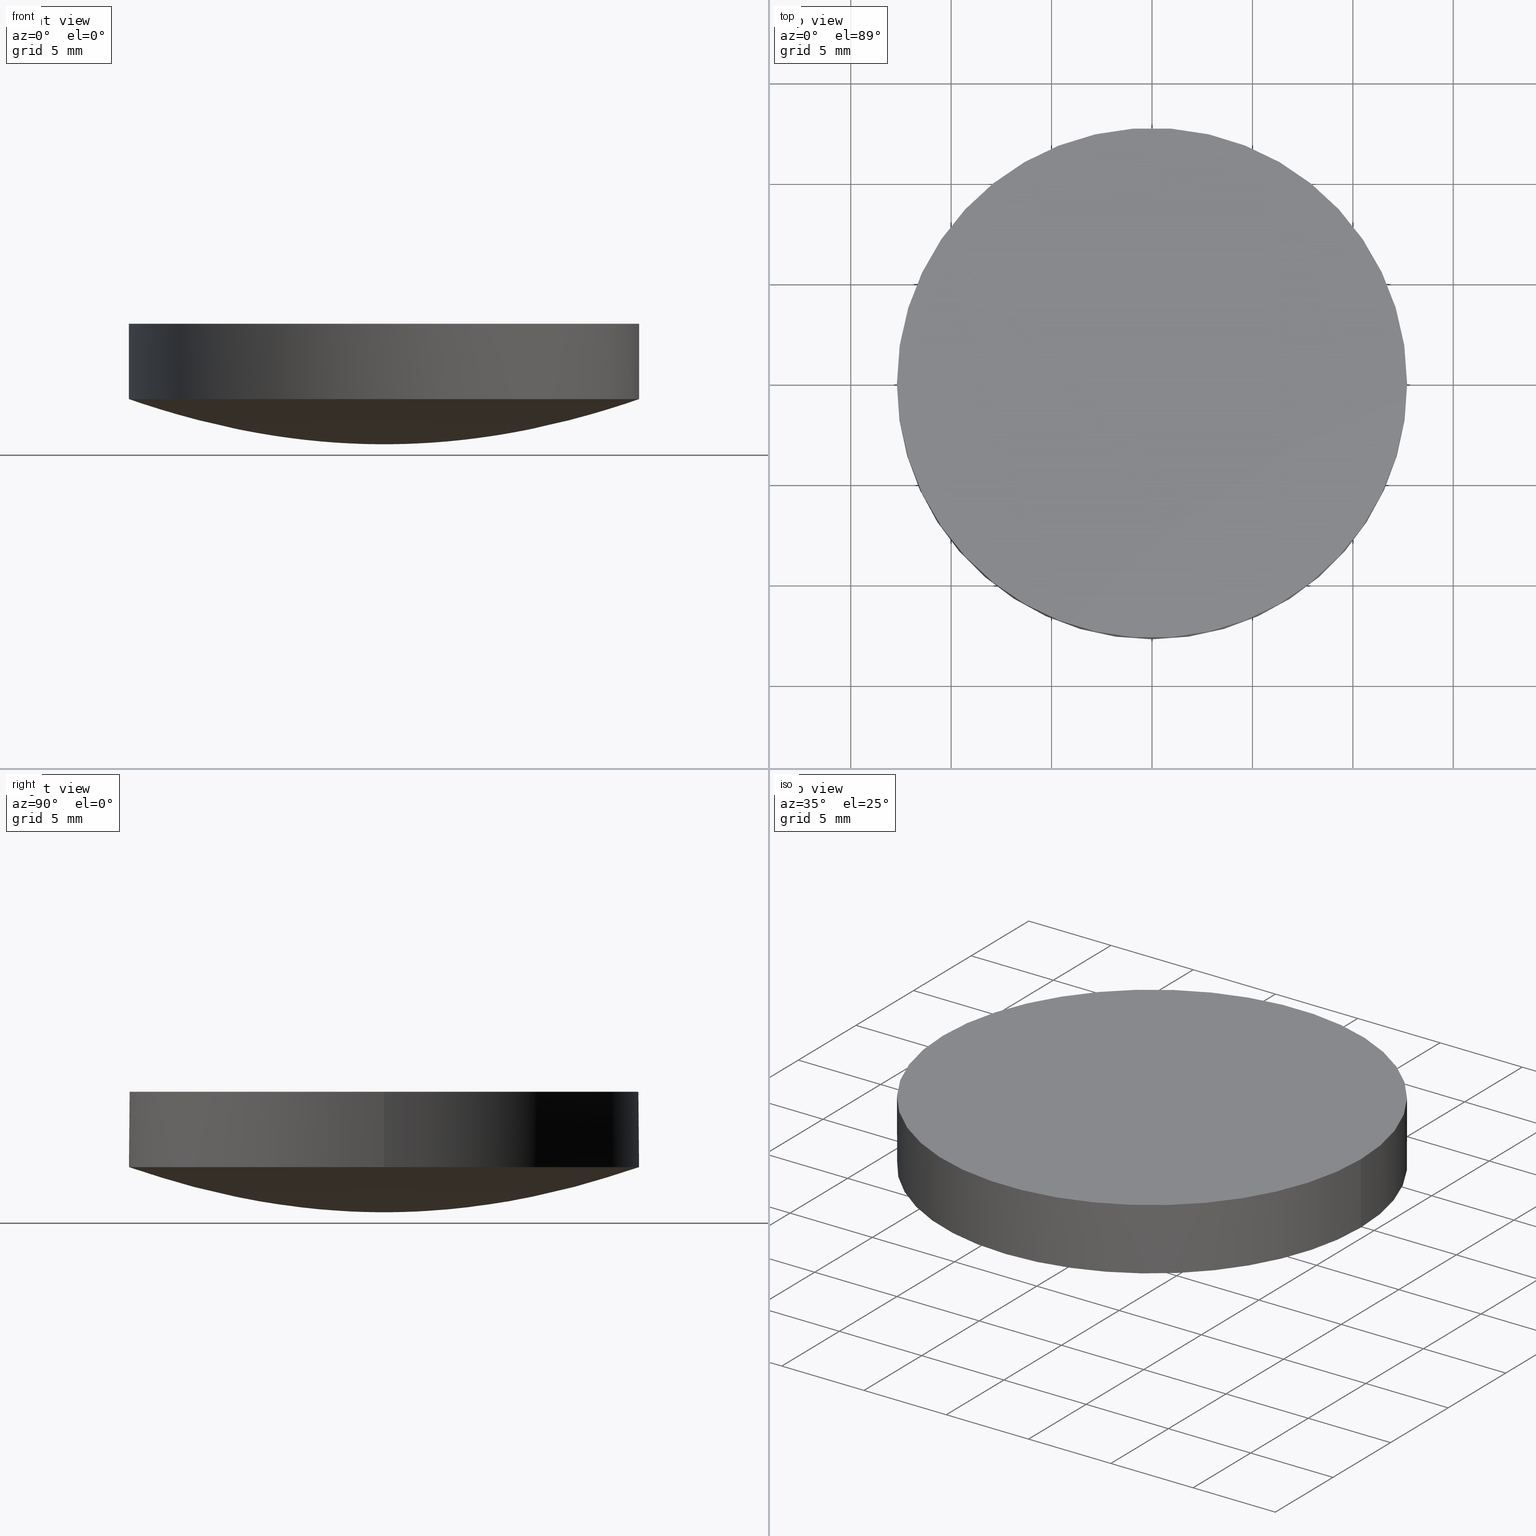
[diagram: canonical four-view strip — front | top / right | iso, engineering-drawing reading convention]
A machine part, canonical four-view strip (front | top / right | iso — engineering-drawing reading convention). The complete STEP part file that produces these views, byte-faithful:
ISO-10303-21;
HEADER;
FILE_DESCRIPTION (( 'STEP AP203' ),
    '1' );
FILE_NAME ('140010.STEP',
    '2021-03-15T05:16:45',
    ( '' ),
    ( '' ),
    'SwSTEP 2.0',
    'SolidWorks 2020',
    '' );
FILE_SCHEMA (( 'CONFIG_CONTROL_DESIGN' ));
ENDSEC;

DATA;
#1 = CARTESIAN_POINT ( 'NONE',  ( 4.411899105315639780, -4.411899105315650438, 0.2736846880030949780 ) ) ;
#2 = CARTESIAN_POINT ( 'NONE',  ( 0.000000000000000000, 6.000059958291039663, 0.5076367197546349797 ) ) ;
#3 = CARTESIAN_POINT ( 'NONE',  ( -9.292796699924739176E-16, -7.588144358352749919, 0.8112916420088790437 ) ) ;
#4 = CARTESIAN_POINT ( 'NONE',  ( -0.9709507383550212145, 0.9709507383550212145, 0.007996846882740939536 ) ) ;
#5 = CARTESIAN_POINT ( 'NONE',  ( -2.823676809465809789, 1.729003383269460226E-16, 0.1104526157183659957 ) ) ;
#6 = ORIENTED_EDGE ( 'NONE', *, *, #297, .F. ) ;
#7 = ADVANCED_FACE ( 'NONE', ( #386 ), #39, .T. ) ;
#8 = CARTESIAN_POINT ( 'NONE',  ( 0.000000000000000000, 4.411899105315640668, 0.2736846880030949780 ) ) ;
#9 = CARTESIAN_POINT ( 'NONE',  ( -9.176139476843300002, -9.176139476843300002, 1.183323889670500062 ) ) ;
#10 = CARTESIAN_POINT ( 'NONE',  ( 1.853112057911709964, -3.404111625274400151E-16, 0.04462971761608650750 ) ) ;
#11 = CARTESIAN_POINT ( 'NONE',  ( 0.000000000000000000, 11.12088207166359943, 1.723977609967809910 ) ) ;
#12 = PERSON_AND_ORGANIZATION ( #41, #361 ) ;
#13 = CARTESIAN_POINT ( 'NONE',  ( 4.411899105315640668, -8.104527176228809510E-16, 0.2736846880030949780 ) ) ;
#14 = ADVANCED_FACE ( 'NONE', ( #258 ), #300, .T. ) ;
#15 = CARTESIAN_POINT ( 'NONE',  ( 0.000000000000000000, 8.293787562700359217, 0.9682949744517169721 ) ) ;
#16 = CARTESIAN_POINT ( 'NONE',  ( 12.69999999999999929, 12.69999999999999929, 2.247269223239399594 ) ) ;
#17 = CARTESIAN_POINT ( 'NONE',  ( 0.000000000000000000, 0.000000000000000000, 0.000000000000000000 ) ) ;
#18 = LINE ( 'NONE', #400, #486 ) ;
#19 = DIRECTION ( 'NONE',  ( -1.000000000000000000, 0.000000000000000000, -3.414809992080328407E-17 ) ) ;
#20 = CARTESIAN_POINT ( 'NONE',  ( 9.881753641688270307, 9.881753641688270307, 1.370214453410330213 ) ) ;
#21 = PERSON_AND_ORGANIZATION ( #41, #361 ) ;
#22 = CIRCLE ( 'NONE', #536, 12.69999999999999929 ) ;
#23 = CARTESIAN_POINT ( 'NONE',  ( -3.458006766538920453E-16, -2.823676809465809789, 0.1104526157183659957 ) ) ;
#24 = FACE_OUTER_BOUND ( 'NONE', #255, .T. ) ;
#25 = COORDINATED_UNIVERSAL_TIME_OFFSET ( 8, 0, .AHEAD. ) ;
#26 = CARTESIAN_POINT ( 'NONE',  ( 0.000000000000000000, 0.2646510451225539962, 0.000000000000000000 ) ) ;
#27 = CARTESIAN_POINT ( 'NONE',  ( -5.403018117485879909E-16, -4.411899105315640668, 0.2736846880030949780 ) ) ;
#28 = CARTESIAN_POINT ( 'NONE',  ( -3.241040553003370126E-17, -0.2646510451225539962, 0.000000000000000000 ) ) ;
#29 = CARTESIAN_POINT ( 'NONE',  ( 0.000000000000000000, 8.293787562700359217, 0.9682949744517169721 ) ) ;
#30 = PERSON_AND_ORGANIZATION ( #41, #361 ) ;
#31 = CARTESIAN_POINT ( 'NONE',  ( -0.9709507383550211035, 5.945358569281179488E-17, 0.007996846882740939536 ) ) ;
#32 = CARTESIAN_POINT ( 'NONE',  ( -7.588144358352749919, 4.646398349962369588E-16, 0.8112916420088790437 ) ) ;
#33 = CARTESIAN_POINT ( 'NONE',  ( -1.210165796725620084E-15, -9.881753641688270307, 1.370214453410329991 ) ) ;
#34 = COORDINATED_UNIVERSAL_TIME_OFFSET ( 8, 0, .AHEAD. ) ;
#35 = CARTESIAN_POINT ( 'NONE',  ( 5.117593248833900432, 5.117593248833889774, 0.3689892521256640245 ) ) ;
#36 = CARTESIAN_POINT ( 'NONE',  ( 0.000000000000000000, 9.176139476843300002, 1.183323889670500062 ) ) ;
#37 = CIRCLE ( 'NONE', #285, 12.70000000000000284 ) ;
#38 = CARTESIAN_POINT ( 'NONE',  ( 2.823676809465809345, -2.823676809465809345, 0.1104526157183659957 ) ) ;
#39 = CYLINDRICAL_SURFACE ( 'NONE', #409, 12.69999999999999929 ) ;
#40 = CARTESIAN_POINT ( 'NONE',  ( -5.117593248833890662, 3.133622095761270144E-16, 0.3689892521256640801 ) ) ;
#41 = PERSON ( 'δָ��', 'δָ��', 'δָ��', ('δָ��'), ('δָ��'), ('δָ��') ) ;
#42 = CARTESIAN_POINT ( 'NONE',  ( 0.000000000000000000, 1.853112057911709964, 0.04462971761608650750 ) ) ;
#43 = CARTESIAN_POINT ( 'NONE',  ( 6.000059958291040552, 6.000059958291040552, 0.5076367197546349797 ) ) ;
#44 = CARTESIAN_POINT ( 'NONE',  ( 11.12088207166360121, 11.12088207166360121, 1.723977609967809910 ) ) ;
#45 = CARTESIAN_POINT ( 'NONE',  ( -6.705730617368448776, -6.705730617368448776, 0.6340659673807349517 ) ) ;
#46 = CARTESIAN_POINT ( 'NONE',  ( 0.000000000000000000, 11.12088207166359943, 1.723977609967809910 ) ) ;
#47 = CARTESIAN_POINT ( 'NONE',  ( 0.000000000000000000, 0.000000000000000000, 0.000000000000000000 ) ) ;
#48 = EDGE_CURVE ( 'NONE', #84, #178, #143, .T. ) ;
#49 = CARTESIAN_POINT ( 'NONE',  ( -5.117593248833900432, -5.117593248833889774, 0.3689892521256640245 ) ) ;
#50 = ORIENTED_EDGE ( 'NONE', *, *, #48, .T. ) ;
#51 = CARTESIAN_POINT ( 'NONE',  ( 0.000000000000000000, 3.529391070972859978, 0.1742189932542360098 ) ) ;
#52 = CARTESIAN_POINT ( 'NONE',  ( 11.12088207166359943, -2.042872894913700070E-15, 1.723977609967809910 ) ) ;
#53 = DATE_TIME_ROLE ( 'creation_date' ) ;
#54 = CARTESIAN_POINT ( 'NONE',  ( 4.411899105315639780, -4.411899105315650438, 0.2736846880030949780 ) ) ;
#55 = CARTESIAN_POINT ( 'NONE',  ( 12.00062017183519991, 12.00062017183519991, 2.005515679943810081 ) ) ;
#56 = CARTESIAN_POINT ( 'NONE',  ( 12.70000000000000462, -8.881784197001248379E-16, 2.247269223239400926 ) ) ;
#57 = CARTESIAN_POINT ( 'NONE',  ( 1.734723475976807094E-15, -1.345898117247522881E-15, 2.247269223239400482 ) ) ;
#58 = CARTESIAN_POINT ( 'NONE',  ( -1.210165796725620084E-15, -9.881753641688270307, 1.370214453410329991 ) ) ;
#59 = CALENDAR_DATE ( 2021, 15, 3 ) ;
#60 = CARTESIAN_POINT ( 'NONE',  ( -1.469652108122110051E-15, -12.00062017183519991, 2.005515679943810081 ) ) ;
#61 = CARTESIAN_POINT ( 'NONE',  ( -12.69999999999999929, 7.776507174585690191E-16, 2.247269223239400038 ) ) ;
#62 = COORDINATED_UNIVERSAL_TIME_OFFSET ( 8, 0, .AHEAD. ) ;
#63 = CARTESIAN_POINT ( 'NONE',  ( -12.00062017183519991, 12.00062017183519991, 2.005515679943810081 ) ) ;
#64 = CARTESIAN_POINT ( 'NONE',  ( 0.000000000000000000, 0.000000000000000000, 0.000000000000000000 ) ) ;
#65 = CARTESIAN_POINT ( 'NONE',  ( -11.12088207166360121, 11.12088207166360121, 1.723977609967809910 ) ) ;
#66 = CARTESIAN_POINT ( 'NONE',  ( -1.189071713856240088E-16, -0.9709507383550211035, 0.007996846882740939536 ) ) ;
#67 = CARTESIAN_POINT ( 'NONE',  ( -6.000059958291040552, 6.000059958291040552, 0.5076367197546349797 ) ) ;
#68 = CARTESIAN_POINT ( 'NONE',  ( -1.853112057911709742, -1.853112057911709742, 0.04462971761608650056 ) ) ;
#69 = EDGE_LOOP ( 'NONE', ( #161, #507, #226, #120 ) ) ;
#70 = CARTESIAN_POINT ( 'NONE',  ( 5.117593248833889774, -5.117593248833900432, 0.3689892521256640245 ) ) ;
#71 = ORIENTED_EDGE ( 'NONE', *, *, #199, .F. ) ;
#72 = LOCAL_TIME ( 13, 16, 45.00000000000000000, #34 ) ;
#73 = CARTESIAN_POINT ( 'NONE',  ( 1.853112057911709742, -1.853112057911709742, 0.04462971761608650056 ) ) ;
#74 = DIRECTION ( 'NONE',  ( 6.993530863780509846E-17, 4.890947394265059749E-33, 1.000000000000000000 ) ) ;
#75 = CARTESIAN_POINT ( 'NONE',  ( -3.241040553003370126E-17, -0.2646510451225539962, 0.000000000000000000 ) ) ;
#76 = CARTESIAN_POINT ( 'NONE',  ( 0.000000000000000000, 3.529391070972859978, 0.1742189932542360098 ) ) ;
#77 = CARTESIAN_POINT ( 'NONE',  ( 6.000059958291040552, -6.000059958291040552, 0.5076367197546349797 ) ) ;
#78 = CARTESIAN_POINT ( 'NONE',  ( -0.9709507383550212145, -0.9709507383550212145, 0.007996846882740939536 ) ) ;
#79 = CARTESIAN_POINT ( 'NONE',  ( 3.529391070972860422, -3.529391070972860422, 0.1742189932542360098 ) ) ;
#80 = CARTESIAN_POINT ( 'NONE',  ( 0.000000000000000000, 9.881753641688270307, 1.370214453410329991 ) ) ;
#81 = CARTESIAN_POINT ( 'NONE',  ( 0.000000000000000000, 9.881753641688270307, 1.370214453410329991 ) ) ;
#82 = CC_DESIGN_APPROVAL ( #461, ( #215 ) ) ;
#83 = CARTESIAN_POINT ( 'NONE',  ( 5.117593248833900432, 5.117593248833889774, 0.3689892521256640245 ) ) ;
#84 = VERTEX_POINT ( 'NONE', #245 ) ;
#85 = CARTESIAN_POINT ( 'NONE',  ( 9.881753641688270307, -9.881753641688270307, 1.370214453410330213 ) ) ;
#86 = CARTESIAN_POINT ( 'NONE',  ( 0.000000000000000000, 6.705730617368449664, 0.6340659673807349517 ) ) ;
#87 = CARTESIAN_POINT ( 'NONE',  ( -0.2646510451225540517, -0.2646510451225540517, 0.000000000000000000 ) ) ;
#88 = CARTESIAN_POINT ( 'NONE',  ( 1.150626804807467557E-15, -8.881784197001250351E-16, 5.999999999999999112 ) ) ;
#89 = CARTESIAN_POINT ( 'NONE',  ( -1.015696039146910080E-15, -8.293787562700359217, 0.9682949744517169721 ) ) ;
#90 = CARTESIAN_POINT ( 'NONE',  ( 6.000059958291040552, -6.000059958291040552, 0.5076367197546349797 ) ) ;
#91 = CARTESIAN_POINT ( 'NONE',  ( 0.000000000000000000, 12.00062017183519991, 2.005515679943810081 ) ) ;
#92 = CARTESIAN_POINT ( 'NONE',  ( 0.000000000000000000, 0.000000000000000000, 0.000000000000000000 ) ) ;
#93 = CARTESIAN_POINT ( 'NONE',  ( -3.529391070972859978, 2.161128739003080043E-16, 0.1742189932542360098 ) ) ;
#94 = CARTESIAN_POINT ( 'NONE',  ( -9.881753641688270307, -9.881753641688270307, 1.370214453410330213 ) ) ;
#95 = AXIS2_PLACEMENT_3D ( 'NONE', #88, #401, #142 ) ;
#96 = CARTESIAN_POINT ( 'NONE',  ( 11.12088207166360121, -11.12088207166360121, 1.723977609967809910 ) ) ;
#97 = DESIGN_CONTEXT ( 'detailed design', #246, 'design' ) ;
#98 = EDGE_CURVE ( 'NONE', #230, #178, #170, .T. ) ;
#99 = CARTESIAN_POINT ( 'NONE',  ( -1.555301434917141588E-15, -12.70000000000000462, 2.247269223239400926 ) ) ;
#100 = CARTESIAN_POINT ( 'NONE',  ( 0.000000000000000000, 0.000000000000000000, 0.000000000000000000 ) ) ;
#101 =( NAMED_UNIT ( * ) PLANE_ANGLE_UNIT ( ) SI_UNIT ( $, .RADIAN. ) );
#102 = CARTESIAN_POINT ( 'NONE',  ( -7.588144358352750807, -7.588144358352750807, 0.8112916420088790437 ) ) ;
#103 = CARTESIAN_POINT ( 'NONE',  ( -12.70000000000000107, 6.671230152170136933E-16, 2.247269223239400038 ) ) ;
#104 = CARTESIAN_POINT ( 'NONE',  ( 0.000000000000000000, 26.11199999999999832, 6.000000000000000000 ) ) ;
#105 = CARTESIAN_POINT ( 'NONE',  ( 9.176139476843291121, -9.176139476843300002, 1.183323889670500062 ) ) ;
#106 = APPROVAL_PERSON_ORGANIZATION ( #12, #461, #190 ) ;
#107 = CARTESIAN_POINT ( 'NONE',  ( 12.69999999999999929, -2.332952152375710015E-15, 2.247269223239400038 ) ) ;
#108 = SECURITY_CLASSIFICATION_LEVEL ( 'unclassified' ) ;
#109 = CC_DESIGN_DATE_AND_TIME_ASSIGNMENT ( #194, #53, ( #215 ) ) ;
#110 = CARTESIAN_POINT ( 'NONE',  ( 8.293787562700359217, -8.293787562700371652, 0.9682949744517168611 ) ) ;
#111 = CARTESIAN_POINT ( 'NONE',  ( 0.000000000000000000, 12.00062017183519991, 2.005515679943810081 ) ) ;
#112 = CARTESIAN_POINT ( 'NONE',  ( -8.212151536504669993E-16, -6.705730617368449664, 0.6340659673807349517 ) ) ;
#113 = COORDINATED_UNIVERSAL_TIME_OFFSET ( 8, 0, .AHEAD. ) ;
#114 = CARTESIAN_POINT ( 'NONE',  ( 0.000000000000000000, 6.705730617368449664, 0.6340659673807349517 ) ) ;
#115 = LOCAL_TIME ( 13, 16, 45.00000000000000000, #411 ) ;
#116 = APPROVAL_ROLE ( '' ) ;
#117 = CARTESIAN_POINT ( 'NONE',  ( -1.189071713856240088E-16, -0.9709507383550211035, 0.007996846882740939536 ) ) ;
#118 = VERTEX_POINT ( 'NONE', #103 ) ;
#119 = CARTESIAN_POINT ( 'NONE',  ( 0.000000000000000000, 3.529391070972859978, 0.1742189932542360098 ) ) ;
#120 = ORIENTED_EDGE ( 'NONE', *, *, #177, .T. ) ;
#121 = CARTESIAN_POINT ( 'NONE',  ( -4.411899105315639780, 4.411899105315639780, 0.2736846880030949780 ) ) ;
#122 = CARTESIAN_POINT ( 'NONE',  ( -8.293787562700371652, -8.293787562700359217, 0.9682949744517168611 ) ) ;
#123 = DIRECTION ( 'NONE',  ( 1.000000000000000000, 0.000000000000000000, -6.829619984160658046E-17 ) ) ;
#124 = CARTESIAN_POINT ( 'NONE',  ( 4.411899105315640668, -8.104527176228809510E-16, 0.2736846880030949780 ) ) ;
#125 = CARTESIAN_POINT ( 'NONE',  ( 2.823676809465809345, 2.823676809465809345, 0.1104526157183659957 ) ) ;
#126 = CARTESIAN_POINT ( 'NONE',  ( 1.853112057911709742, 1.853112057911709742, 0.04462971761608650056 ) ) ;
#127 = CARTESIAN_POINT ( 'NONE',  ( 0.2646510451225540517, -0.2646510451225540517, 0.000000000000000000 ) ) ;
#128 = CARTESIAN_POINT ( 'NONE',  ( -5.403018117485879909E-16, -4.411899105315640668, 0.2736846880030949780 ) ) ;
#129 = CARTESIAN_POINT ( 'NONE',  ( 0.000000000000000000, 12.00062017183519991, 2.005515679943810081 ) ) ;
#130 = CARTESIAN_POINT ( 'NONE',  ( 0.000000000000000000, 0.2646510451225539962, 0.000000000000000000 ) ) ;
#131 = CARTESIAN_POINT ( 'NONE',  ( -6.000059958291040552, -6.000059958291040552, 0.5076367197546349797 ) ) ;
#132 = EDGE_LOOP ( 'NONE', ( #144, #520, #389, #50 ) ) ;
#133 = CARTESIAN_POINT ( 'NONE',  ( 0.000000000000000000, 9.176139476843300002, 1.183323889670500062 ) ) ;
#134 = DATE_AND_TIME ( #518, #231 ) ;
#135 = CLOSED_SHELL ( 'NONE', ( #270, #14, #413, #7, #369 ) ) ;
#136 = CARTESIAN_POINT ( 'NONE',  ( 6.705730617368449664, -1.231822730475699957E-15, 0.6340659673807349517 ) ) ;
#137 = CARTESIAN_POINT ( 'NONE',  ( 12.69999999999999929, -12.69999999999999929, 2.247269223239399594 ) ) ;
#138 = CARTESIAN_POINT ( 'NONE',  ( 0.000000000000000000, 0.000000000000000000, 0.000000000000000000 ) ) ;
#139 = CARTESIAN_POINT ( 'NONE',  ( 0.000000000000000000, 2.823676809465809789, 0.1104526157183659957 ) ) ;
#140 = ORIENTED_EDGE ( 'NONE', *, *, #177, .F. ) ;
#141 = CARTESIAN_POINT ( 'NONE',  ( 0.000000000000000000, 12.00062017183519991, 2.005515679943810081 ) ) ;
#142 = DIRECTION ( 'NONE',  ( 1.000000000000000000, 0.000000000000000000, -6.829619984160658046E-17 ) ) ;
#143 = B_SPLINE_CURVE_WITH_KNOTS ( 'NONE', 3,
 ( #222, #129, #46, #81, #477, #15, #391, #86, #305, #183, #479, #51, #433, #356, #331, #26, #332 ),
 .UNSPECIFIED., .F., .F.,
 ( 4, 1, 1, 1, 1, 1, 1, 1, 1, 1, 1, 1, 1, 1, 4 ),
 ( 0.000000000000000000, 0.1713303433968769995, 0.2138002220556740052, 0.2983038402943499756, 0.3403375798742280245, 0.4240257264242249802, 0.4656801333943419996, 0.5486747096414229530, 0.5900148789183859988, 0.6724530698831030495, 0.7135510915708570545, 0.7955825529604799717, 0.8365159926623489950, 0.9387247161821089536, 1.000000000000000000 ),
 .UNSPECIFIED. ) ;
#144 = ORIENTED_EDGE ( 'NONE', *, *, #98, .F. ) ;
#145 = CARTESIAN_POINT ( 'NONE',  ( 1.734723475976807094E-15, -1.345898117247522881E-15, 2.247269223239400482 ) ) ;
#146 = CARTESIAN_POINT ( 'NONE',  ( 0.000000000000000000, 0.9709507383550211035, 0.007996846882740939536 ) ) ;
#147 = CC_DESIGN_PERSON_AND_ORGANIZATION_ASSIGNMENT ( #244, #490, ( #236 ) ) ;
#148 = CARTESIAN_POINT ( 'NONE',  ( 0.000000000000000000, 11.12088207166359943, 1.723977609967809910 ) ) ;
#149 = CARTESIAN_POINT ( 'NONE',  ( 0.000000000000000000, 0.2646510451225539962, 0.000000000000000000 ) ) ;
#150 = CARTESIAN_POINT ( 'NONE',  ( 0.000000000000000000, 0.000000000000000000, 0.000000000000000000 ) ) ;
#151 = CARTESIAN_POINT ( 'NONE',  ( 0.000000000000000000, 12.69999999999999929, 2.247269223239400038 ) ) ;
#152 = CARTESIAN_POINT ( 'NONE',  ( 0.000000000000000000, 0.000000000000000000, 0.000000000000000000 ) ) ;
#153 = CARTESIAN_POINT ( 'NONE',  ( -1.210165796725620084E-15, -9.881753641688270307, 1.370214453410329991 ) ) ;
#154 = PERSON_AND_ORGANIZATION ( #41, #361 ) ;
#155 = CARTESIAN_POINT ( 'NONE',  ( -1.555301434917140010E-15, -12.69999999999999929, 2.247269223239400038 ) ) ;
#156 = CARTESIAN_POINT ( 'NONE',  ( -6.705730617368448776, 6.705730617368448776, 0.6340659673807349517 ) ) ;
#157 = CARTESIAN_POINT ( 'NONE',  ( 0.000000000000000000, 12.00062017183519991, 2.005515679943810081 ) ) ;
#158 = CARTESIAN_POINT ( 'NONE',  ( 0.000000000000000000, 6.705730617368449664, 0.6340659673807349517 ) ) ;
#159 = CARTESIAN_POINT ( 'NONE',  ( 4.411899105315650438, 4.411899105315639780, 0.2736846880030949780 ) ) ;
#160 = CARTESIAN_POINT ( 'NONE',  ( 0.000000000000000000, 8.293787562700359217, 0.9682949744517169721 ) ) ;
#161 = ORIENTED_EDGE ( 'NONE', *, *, #312, .T. ) ;
#162 =( BOUNDED_SURFACE ( )  B_SPLINE_SURFACE ( 3, 2, ( 
 ( #151, #450, #326, #374, #155, #498, #107, #360, #286 ),
 ( #111, #63, #282, #453, #60, #370, #492, #249, #157 ),
 ( #148, #65, #408, #324, #488, #196, #251, #44, #420 ),
 ( #80, #423, #163, #377, #33, #85, #465, #502, #176 ),
 ( #224, #462, #393, #9, #210, #307, #380, #517, #133 ),
 ( #266, #396, #181, #314, #89, #110, #368, #281, #29 ),
 ( #496, #284, #205, #102, #204, #366, #198, #202, #372 ),
 ( #158, #156, #534, #328, #112, #290, #501, #457, #114 ),
 ( #291, #67, #252, #418, #195, #77, #295, #335, #2 ),
 ( #208, #424, #40, #259, #463, #70, #211, #35, #383 ),
 ( #254, #121, #171, #466, #216, #1, #124, #159, #212 ),
 ( #119, #467, #298, #166, #342, #511, #174, #262, #301 ),
 ( #339, #219, #387, #384, #340, #38, #303, #378, #504 ),
 ( #345, #509, #299, #68, #253, #73, #256, #126, #42 ),
 ( #472, #4, #31, #506, #117, #474, #542, #422, #381 ),
 ( #426, #513, #543, #164, #75, #427, #439, #313, #149 ),
 ( #403, #232, #152, #451, #327, #64, #493, #365, #100 ) ),
 .UNSPECIFIED., .F., .T., .T. ) 
 B_SPLINE_SURFACE_WITH_KNOTS ( ( 4, 1, 1, 1, 1, 1, 1, 1, 1, 1, 1, 1, 1, 1, 4 ),
 ( 3, 2, 2, 2, 3 ),
 ( 0.000000000000000000, 0.1713303433968769995, 0.2138002220556740052, 0.2983038402943499756, 0.3403375798742280245, 0.4240257264242249802, 0.4656801333943419996, 0.5486747096414229530, 0.5900148789183859988, 0.6724530698831030495, 0.7135510915708570545, 0.7955825529604799717, 0.8365159926623489950, 0.9387247161821089536, 1.000000000000000000 ),
 ( 0.000000000000000000, 90.00000000000000000, 180.0000000000000000, 270.0000000000000000, 360.0000000000000000 ),
 .UNSPECIFIED. ) 
 GEOMETRIC_REPRESENTATION_ITEM ( )  RATIONAL_B_SPLINE_SURFACE ( (
 ( 1.000000000000000000, 0.7071067811865480168, 1.000000000000000000, 0.7071067811865480168, 1.000000000000000000, 0.7071067811865480168, 1.000000000000000000, 0.7071067811865480168, 1.000000000000000000),
 ( 1.000000000000000000, 0.7071067811865480168, 1.000000000000000000, 0.7071067811865480168, 1.000000000000000000, 0.7071067811865480168, 1.000000000000000000, 0.7071067811865480168, 1.000000000000000000),
 ( 1.000000000000000000, 0.7071067811865480168, 1.000000000000000000, 0.7071067811865480168, 1.000000000000000000, 0.7071067811865480168, 1.000000000000000000, 0.7071067811865480168, 1.000000000000000000),
 ( 1.000000000000000000, 0.7071067811865480168, 1.000000000000000000, 0.7071067811865480168, 1.000000000000000000, 0.7071067811865480168, 1.000000000000000000, 0.7071067811865480168, 1.000000000000000000),
 ( 1.000000000000000000, 0.7071067811865480168, 1.000000000000000000, 0.7071067811865480168, 1.000000000000000000, 0.7071067811865480168, 1.000000000000000000, 0.7071067811865480168, 1.000000000000000000),
 ( 1.000000000000000000, 0.7071067811865480168, 1.000000000000000000, 0.7071067811865480168, 1.000000000000000000, 0.7071067811865480168, 1.000000000000000000, 0.7071067811865480168, 1.000000000000000000),
 ( 1.000000000000000000, 0.7071067811865480168, 1.000000000000000000, 0.7071067811865480168, 1.000000000000000000, 0.7071067811865480168, 1.000000000000000000, 0.7071067811865480168, 1.000000000000000000),
 ( 1.000000000000000000, 0.7071067811865480168, 1.000000000000000000, 0.7071067811865480168, 1.000000000000000000, 0.7071067811865480168, 1.000000000000000000, 0.7071067811865480168, 1.000000000000000000),
 ( 1.000000000000000000, 0.7071067811865480168, 1.000000000000000000, 0.7071067811865480168, 1.000000000000000000, 0.7071067811865480168, 1.000000000000000000, 0.7071067811865480168, 1.000000000000000000),
 ( 1.000000000000000000, 0.7071067811865480168, 1.000000000000000000, 0.7071067811865480168, 1.000000000000000000, 0.7071067811865480168, 1.000000000000000000, 0.7071067811865480168, 1.000000000000000000),
 ( 1.000000000000000000, 0.7071067811865480168, 1.000000000000000000, 0.7071067811865480168, 1.000000000000000000, 0.7071067811865480168, 1.000000000000000000, 0.7071067811865480168, 1.000000000000000000),
 ( 1.000000000000000000, 0.7071067811865480168, 1.000000000000000000, 0.7071067811865480168, 1.000000000000000000, 0.7071067811865480168, 1.000000000000000000, 0.7071067811865480168, 1.000000000000000000),
 ( 1.000000000000000000, 0.7071067811865480168, 1.000000000000000000, 0.7071067811865480168, 1.000000000000000000, 0.7071067811865480168, 1.000000000000000000, 0.7071067811865480168, 1.000000000000000000),
 ( 1.000000000000000000, 0.7071067811865480168, 1.000000000000000000, 0.7071067811865480168, 1.000000000000000000, 0.7071067811865480168, 1.000000000000000000, 0.7071067811865480168, 1.000000000000000000),
 ( 1.000000000000000000, 0.7071067811865480168, 1.000000000000000000, 0.7071067811865480168, 1.000000000000000000, 0.7071067811865480168, 1.000000000000000000, 0.7071067811865480168, 1.000000000000000000),
 ( 1.000000000000000000, 0.7071067811865480168, 1.000000000000000000, 0.7071067811865480168, 1.000000000000000000, 0.7071067811865480168, 1.000000000000000000, 0.7071067811865480168, 1.000000000000000000),
 ( 1.000000000000000000, 0.7071067811865480168, 1.000000000000000000, 0.7071067811865480168, 1.000000000000000000, 0.7071067811865480168, 1.000000000000000000, 0.7071067811865480168, 1.000000000000000000) ) ) 
 REPRESENTATION_ITEM ( '' )  SURFACE ( )  );
#163 = CARTESIAN_POINT ( 'NONE',  ( -9.881753641688270307, 6.050828983628121126E-16, 1.370214453410329991 ) ) ;
#164 = CARTESIAN_POINT ( 'NONE',  ( -0.2646510451225540517, -0.2646510451225540517, 0.000000000000000000 ) ) ;
#165 = CARTESIAN_POINT ( 'NONE',  ( -8.293787562700359217, 8.293787562700359217, 0.9682949744517168611 ) ) ;
#166 = CARTESIAN_POINT ( 'NONE',  ( -3.529391070972860422, -3.529391070972860422, 0.1742189932542360098 ) ) ;
#167 = CARTESIAN_POINT ( 'NONE',  ( -1.015696039146910080E-15, -8.293787562700359217, 0.9682949744517169721 ) ) ;
#168 = ORIENTED_EDGE ( 'NONE', *, *, #347, .T. ) ;
#169 = EDGE_CURVE ( 'NONE', #483, #265, #22, .T. ) ;
#170 = B_SPLINE_CURVE_WITH_KNOTS ( 'NONE', 3,
 ( #99, #200, #364, #153, #532, #412, #247, #414, #416, #500, #27, #539, #23, #455, #66, #28, #276 ),
 .UNSPECIFIED., .F., .F.,
 ( 4, 1, 1, 1, 1, 1, 1, 1, 1, 1, 1, 1, 1, 1, 4 ),
 ( 0.000000000000000000, 0.1713303433968769995, 0.2138002220556740052, 0.2983038402943499756, 0.3403375798742280245, 0.4240257264242249802, 0.4656801333943419996, 0.5486747096414229530, 0.5900148789183859988, 0.6724530698831030495, 0.7135510915708570545, 0.7955825529604799717, 0.8365159926623489950, 0.9387247161821089536, 1.000000000000000000 ),
 .UNSPECIFIED. ) ;
#171 = CARTESIAN_POINT ( 'NONE',  ( -4.411899105315640668, 2.701509058742939955E-16, 0.2736846880030949780 ) ) ;
#172 = CARTESIAN_POINT ( 'NONE',  ( -3.458006766538920453E-16, -2.823676809465809789, 0.1104526157183659957 ) ) ;
#173 = CARTESIAN_POINT ( 'NONE',  ( 8.881784197001250351E-16, -8.881784197001250351E-16, 2.247269223239400038 ) ) ;
#174 = CARTESIAN_POINT ( 'NONE',  ( 3.529391070972859978, -6.483386217009249744E-16, 0.1742189932542360098 ) ) ;
#175 = CARTESIAN_POINT ( 'NONE',  ( 0.000000000000000000, 5.117593248833890662, 0.3689892521256640801 ) ) ;
#176 = CARTESIAN_POINT ( 'NONE',  ( 0.000000000000000000, 9.881753641688270307, 1.370214453410329991 ) ) ;
#177 = EDGE_CURVE ( 'NONE', #84, #460, #250, .T. ) ;
#178 = VERTEX_POINT ( 'NONE', #537 ) ;
#179 = PRODUCT_DEFINITION_SHAPE ( 'NONE', 'NONE',  #215 ) ;
#180 = CARTESIAN_POINT ( 'NONE',  ( 1.853112057911709742, 1.853112057911709742, 0.04462971761608650056 ) ) ;
#181 = CARTESIAN_POINT ( 'NONE',  ( -8.293787562700359217, 5.078480195734570121E-16, 0.9682949744517169721 ) ) ;
#182 = CARTESIAN_POINT ( 'NONE',  ( 9.176139476843300002, -1.685629475826870230E-15, 1.183323889670500062 ) ) ;
#183 = CARTESIAN_POINT ( 'NONE',  ( 0.000000000000000000, 5.117593248833890662, 0.3689892521256640801 ) ) ;
#184 = LOCAL_TIME ( 13, 16, 45.00000000000000000, #113 ) ;
#185 = DIRECTION ( 'NONE',  ( 6.993530863780509846E-17, 4.890947394265059749E-33, 1.000000000000000000 ) ) ;
#186 = CARTESIAN_POINT ( 'NONE',  ( 0.000000000000000000, 0.000000000000000000, 0.000000000000000000 ) ) ;
#187 = CARTESIAN_POINT ( 'NONE',  ( 0.000000000000000000, 1.853112057911709964, 0.04462971761608650750 ) ) ;
#188 = ORIENTED_EDGE ( 'NONE', *, *, #207, .F. ) ;
#189 = DIRECTION ( 'NONE',  ( 6.993530863780509846E-17, 4.890947394265059749E-33, 1.000000000000000000 ) ) ;
#190 = APPROVAL_ROLE ( '' ) ;
#191 =( BOUNDED_SURFACE ( )  B_SPLINE_SURFACE ( 3, 2, ( 
 ( #362, #442, #61, #283, #243, #137, #358, #16, #197 ),
 ( #141, #480, #410, #357, #397, #533, #320, #55, #91 ),
 ( #11, #525, #268, #487, #237, #96, #52, #277, #445 ),
 ( #524, #317, #484, #94, #58, #240, #406, #20, #193 ),
 ( #535, #341, #438, #288, #248, #105, #182, #311, #36 ),
 ( #160, #165, #510, #122, #167, #213, #470, #419, #505 ),
 ( #218, #456, #32, #385, #3, #459, #376, #333, #209 ),
 ( #379, #336, #263, #45, #431, #306, #136, #310, #315 ),
 ( #478, #519, #388, #131, #523, #90, #476, #43, #440 ),
 ( #348, #267, #223, #49, #482, #437, #302, #83, #175 ),
 ( #229, #475, #473, #398, #128, #54, #13, #264, #8 ),
 ( #234, #435, #93, #514, #271, #79, #429, #220, #76 ),
 ( #225, #350, #5, #402, #172, #343, #512, #125, #139 ),
 ( #187, #261, #355, #304, #516, #395, #10, #180, #352 ),
 ( #146, #321, #392, #78, #346, #257, #434, #227, #515 ),
 ( #349, #260, #217, #87, #351, #127, #428, #430, #130 ),
 ( #309, #526, #17, #481, #150, #47, #92, #138, #186 ) ),
 .UNSPECIFIED., .F., .T., .T. ) 
 B_SPLINE_SURFACE_WITH_KNOTS ( ( 4, 1, 1, 1, 1, 1, 1, 1, 1, 1, 1, 1, 1, 1, 4 ),
 ( 3, 2, 2, 2, 3 ),
 ( 0.000000000000000000, 0.1713303433968769995, 0.2138002220556740052, 0.2983038402943499756, 0.3403375798742280245, 0.4240257264242249802, 0.4656801333943419996, 0.5486747096414229530, 0.5900148789183859988, 0.6724530698831030495, 0.7135510915708570545, 0.7955825529604799717, 0.8365159926623489950, 0.9387247161821089536, 1.000000000000000000 ),
 ( 0.000000000000000000, 90.00000000000000000, 180.0000000000000000, 270.0000000000000000, 360.0000000000000000 ),
 .UNSPECIFIED. ) 
 GEOMETRIC_REPRESENTATION_ITEM ( )  RATIONAL_B_SPLINE_SURFACE ( (
 ( 1.000000000000000000, 0.7071067811865480168, 1.000000000000000000, 0.7071067811865480168, 1.000000000000000000, 0.7071067811865480168, 1.000000000000000000, 0.7071067811865480168, 1.000000000000000000),
 ( 1.000000000000000000, 0.7071067811865480168, 1.000000000000000000, 0.7071067811865480168, 1.000000000000000000, 0.7071067811865480168, 1.000000000000000000, 0.7071067811865480168, 1.000000000000000000),
 ( 1.000000000000000000, 0.7071067811865480168, 1.000000000000000000, 0.7071067811865480168, 1.000000000000000000, 0.7071067811865480168, 1.000000000000000000, 0.7071067811865480168, 1.000000000000000000),
 ( 1.000000000000000000, 0.7071067811865480168, 1.000000000000000000, 0.7071067811865480168, 1.000000000000000000, 0.7071067811865480168, 1.000000000000000000, 0.7071067811865480168, 1.000000000000000000),
 ( 1.000000000000000000, 0.7071067811865480168, 1.000000000000000000, 0.7071067811865480168, 1.000000000000000000, 0.7071067811865480168, 1.000000000000000000, 0.7071067811865480168, 1.000000000000000000),
 ( 1.000000000000000000, 0.7071067811865480168, 1.000000000000000000, 0.7071067811865480168, 1.000000000000000000, 0.7071067811865480168, 1.000000000000000000, 0.7071067811865480168, 1.000000000000000000),
 ( 1.000000000000000000, 0.7071067811865480168, 1.000000000000000000, 0.7071067811865480168, 1.000000000000000000, 0.7071067811865480168, 1.000000000000000000, 0.7071067811865480168, 1.000000000000000000),
 ( 1.000000000000000000, 0.7071067811865480168, 1.000000000000000000, 0.7071067811865480168, 1.000000000000000000, 0.7071067811865480168, 1.000000000000000000, 0.7071067811865480168, 1.000000000000000000),
 ( 1.000000000000000000, 0.7071067811865480168, 1.000000000000000000, 0.7071067811865480168, 1.000000000000000000, 0.7071067811865480168, 1.000000000000000000, 0.7071067811865480168, 1.000000000000000000),
 ( 1.000000000000000000, 0.7071067811865480168, 1.000000000000000000, 0.7071067811865480168, 1.000000000000000000, 0.7071067811865480168, 1.000000000000000000, 0.7071067811865480168, 1.000000000000000000),
 ( 1.000000000000000000, 0.7071067811865480168, 1.000000000000000000, 0.7071067811865480168, 1.000000000000000000, 0.7071067811865480168, 1.000000000000000000, 0.7071067811865480168, 1.000000000000000000),
 ( 1.000000000000000000, 0.7071067811865480168, 1.000000000000000000, 0.7071067811865480168, 1.000000000000000000, 0.7071067811865480168, 1.000000000000000000, 0.7071067811865480168, 1.000000000000000000),
 ( 1.000000000000000000, 0.7071067811865480168, 1.000000000000000000, 0.7071067811865480168, 1.000000000000000000, 0.7071067811865480168, 1.000000000000000000, 0.7071067811865480168, 1.000000000000000000),
 ( 1.000000000000000000, 0.7071067811865480168, 1.000000000000000000, 0.7071067811865480168, 1.000000000000000000, 0.7071067811865480168, 1.000000000000000000, 0.7071067811865480168, 1.000000000000000000),
 ( 1.000000000000000000, 0.7071067811865480168, 1.000000000000000000, 0.7071067811865480168, 1.000000000000000000, 0.7071067811865480168, 1.000000000000000000, 0.7071067811865480168, 1.000000000000000000),
 ( 1.000000000000000000, 0.7071067811865480168, 1.000000000000000000, 0.7071067811865480168, 1.000000000000000000, 0.7071067811865480168, 1.000000000000000000, 0.7071067811865480168, 1.000000000000000000),
 ( 1.000000000000000000, 0.7071067811865480168, 1.000000000000000000, 0.7071067811865480168, 1.000000000000000000, 0.7071067811865480168, 1.000000000000000000, 0.7071067811865480168, 1.000000000000000000) ) ) 
 REPRESENTATION_ITEM ( '' )  SURFACE ( )  );
#192 = DIRECTION ( 'NONE',  ( 3.414809992080330256E-17, -3.414809992080330256E-17, -1.000000000000000000 ) ) ;
#193 = CARTESIAN_POINT ( 'NONE',  ( 0.000000000000000000, 9.881753641688270307, 1.370214453410329991 ) ) ;
#194 = DATE_AND_TIME ( #59, #373 ) ;
#195 = CARTESIAN_POINT ( 'NONE',  ( -7.347954222613319716E-16, -6.000059958291039663, 0.5076367197546349797 ) ) ;
#196 = CARTESIAN_POINT ( 'NONE',  ( 11.12088207166360121, -11.12088207166360121, 1.723977609967809910 ) ) ;
#197 = CARTESIAN_POINT ( 'NONE',  ( 0.000000000000000000, 12.69999999999999929, 2.247269223239400038 ) ) ;
#198 = CARTESIAN_POINT ( 'NONE',  ( 7.588144358352749919, -1.393919504988710285E-15, 0.8112916420088790437 ) ) ;
#199 = EDGE_CURVE ( 'NONE', #118, #84, #37, .T. ) ;
#200 = CARTESIAN_POINT ( 'NONE',  ( -1.469652108122110051E-15, -12.00062017183519991, 2.005515679943810081 ) ) ;
#201 = PERSON_AND_ORGANIZATION_ROLE ( 'design_supplier' ) ;
#202 = CARTESIAN_POINT ( 'NONE',  ( 7.588144358352750807, 7.588144358352750807, 0.8112916420088790437 ) ) ;
#203 = CARTESIAN_POINT ( 'NONE',  ( 12.70000000000000107, -8.881784197001250351E-16, 5.999999999999998224 ) ) ;
#204 = CARTESIAN_POINT ( 'NONE',  ( -9.292796699924739176E-16, -7.588144358352749919, 0.8112916420088790437 ) ) ;
#205 = CARTESIAN_POINT ( 'NONE',  ( -7.588144358352749919, 4.646398349962369588E-16, 0.8112916420088790437 ) ) ;
#206 = DATE_AND_TIME ( #294, #72 ) ;
#207 = EDGE_CURVE ( 'NONE', #230, #118, #382, .T. ) ;
#208 = CARTESIAN_POINT ( 'NONE',  ( 0.000000000000000000, 5.117593248833890662, 0.3689892521256640801 ) ) ;
#209 = CARTESIAN_POINT ( 'NONE',  ( 0.000000000000000000, 7.588144358352749919, 0.8112916420088790437 ) ) ;
#210 = CARTESIAN_POINT ( 'NONE',  ( -1.123752983884580088E-15, -9.176139476843300002, 1.183323889670500062 ) ) ;
#211 = CARTESIAN_POINT ( 'NONE',  ( 5.117593248833890662, -9.400866287283799585E-16, 0.3689892521256640801 ) ) ;
#212 = CARTESIAN_POINT ( 'NONE',  ( 0.000000000000000000, 4.411899105315640668, 0.2736846880030949780 ) ) ;
#213 = CARTESIAN_POINT ( 'NONE',  ( 8.293787562700359217, -8.293787562700371652, 0.9682949744517168611 ) ) ;
#214 = DIRECTION ( 'NONE',  ( 6.993530863780509846E-17, 4.890947394265059749E-33, 1.000000000000000000 ) ) ;
#215 = PRODUCT_DEFINITION ( 'δ֪', '', #544, #97 ) ;
#216 = CARTESIAN_POINT ( 'NONE',  ( -5.403018117485879909E-16, -4.411899105315640668, 0.2736846880030949780 ) ) ;
#217 = CARTESIAN_POINT ( 'NONE',  ( -0.2646510451225539962, 1.620520276501689993E-17, 0.000000000000000000 ) ) ;
#218 = CARTESIAN_POINT ( 'NONE',  ( 0.000000000000000000, 7.588144358352749919, 0.8112916420088790437 ) ) ;
#219 = CARTESIAN_POINT ( 'NONE',  ( -2.823676809465809345, 2.823676809465809345, 0.1104526157183659957 ) ) ;
#220 = CARTESIAN_POINT ( 'NONE',  ( 3.529391070972860422, 3.529391070972860422, 0.1742189932542360098 ) ) ;
#221 = CIRCLE ( 'NONE', #527, 12.70000000000000284 ) ;
#222 = CARTESIAN_POINT ( 'NONE',  ( -3.851859888774471706E-31, 12.70000000000000284, 2.247269223239400038 ) ) ;
#223 = CARTESIAN_POINT ( 'NONE',  ( -5.117593248833890662, 3.133622095761270144E-16, 0.3689892521256640801 ) ) ;
#224 = CARTESIAN_POINT ( 'NONE',  ( 0.000000000000000000, 9.176139476843300002, 1.183323889670500062 ) ) ;
#225 = CARTESIAN_POINT ( 'NONE',  ( 0.000000000000000000, 2.823676809465809789, 0.1104526157183659957 ) ) ;
#226 = ORIENTED_EDGE ( 'NONE', *, *, #48, .F. ) ;
#227 = CARTESIAN_POINT ( 'NONE',  ( 0.9709507383550212145, 0.9709507383550199933, 0.007996846882740939536 ) ) ;
#228 = MECHANICAL_CONTEXT ( 'NONE', #318, 'mechanical' ) ;
#229 = CARTESIAN_POINT ( 'NONE',  ( 0.000000000000000000, 4.411899105315640668, 0.2736846880030949780 ) ) ;
#230 = VERTEX_POINT ( 'NONE', #289 ) ;
#231 = LOCAL_TIME ( 13, 16, 45.00000000000000000, #62 ) ;
#232 = CARTESIAN_POINT ( 'NONE',  ( 0.000000000000000000, 0.000000000000000000, 0.000000000000000000 ) ) ;
#233 = DATE_AND_TIME ( #359, #115 ) ;
#234 = CARTESIAN_POINT ( 'NONE',  ( 0.000000000000000000, 3.529391070972859978, 0.1742189932542360098 ) ) ;
#235 = ORIENTED_EDGE ( 'NONE', *, *, #297, .T. ) ;
#236 = PRODUCT ( '140010', '140010', '', ( #228 ) ) ;
#237 = CARTESIAN_POINT ( 'NONE',  ( -1.361915263275800047E-15, -11.12088207166359943, 1.723977609967809910 ) ) ;
#238 = APPLICATION_PROTOCOL_DEFINITION ( 'international standard', 'config_control_design', 1994, #246 ) ;
#239 = CARTESIAN_POINT ( 'NONE',  ( 1.734723475976807094E-15, -1.345898117247522881E-15, 2.247269223239400482 ) ) ;
#240 = CARTESIAN_POINT ( 'NONE',  ( 9.881753641688270307, -9.881753641688270307, 1.370214453410330213 ) ) ;
#241 = DIRECTION ( 'NONE',  ( 0.000000000000000000, 0.000000000000000000, 1.000000000000000000 ) ) ;
#242 = DIRECTION ( 'NONE',  ( -1.000000000000000000, 0.000000000000000000, -3.414809992080328407E-17 ) ) ;
#243 = CARTESIAN_POINT ( 'NONE',  ( -1.555301434917140010E-15, -12.69999999999999929, 2.247269223239400038 ) ) ;
#244 = PERSON_AND_ORGANIZATION ( #41, #361 ) ;
#245 = CARTESIAN_POINT ( 'NONE',  ( -3.851859888774471706E-31, 12.70000000000000284, 2.247269223239400038 ) ) ;
#246 = APPLICATION_CONTEXT ( 'configuration controlled 3d designs of mechanical parts and assemblies' ) ;
#247 = CARTESIAN_POINT ( 'NONE',  ( -9.292796699924739176E-16, -7.588144358352749919, 0.8112916420088790437 ) ) ;
#248 = CARTESIAN_POINT ( 'NONE',  ( -1.123752983884580088E-15, -9.176139476843300002, 1.183323889670500062 ) ) ;
#249 = CARTESIAN_POINT ( 'NONE',  ( 12.00062017183519991, 12.00062017183519991, 2.005515679943810081 ) ) ;
#250 = CIRCLE ( 'NONE', #337, 12.70000000000000284 ) ;
#251 = CARTESIAN_POINT ( 'NONE',  ( 11.12088207166359943, -2.042872894913700070E-15, 1.723977609967809910 ) ) ;
#252 = CARTESIAN_POINT ( 'NONE',  ( -6.000059958291039663, 3.673977111306659858E-16, 0.5076367197546349797 ) ) ;
#253 = CARTESIAN_POINT ( 'NONE',  ( -2.269407750182939844E-16, -1.853112057911709964, 0.04462971761608650750 ) ) ;
#254 = CARTESIAN_POINT ( 'NONE',  ( 0.000000000000000000, 4.411899105315640668, 0.2736846880030949780 ) ) ;
#255 = EDGE_LOOP ( 'NONE', ( #272, #293 ) ) ;
#256 = CARTESIAN_POINT ( 'NONE',  ( 1.853112057911709964, -3.404111625274400151E-16, 0.04462971761608650750 ) ) ;
#257 = CARTESIAN_POINT ( 'NONE',  ( 0.9709507383550212145, -0.9709507383550212145, 0.007996846882740939536 ) ) ;
#258 = FACE_OUTER_BOUND ( 'NONE', #464, .T. ) ;
#259 = CARTESIAN_POINT ( 'NONE',  ( -5.117593248833900432, -5.117593248833889774, 0.3689892521256640245 ) ) ;
#260 = CARTESIAN_POINT ( 'NONE',  ( -0.2646510451225540517, 0.2646510451225540517, 0.000000000000000000 ) ) ;
#261 = CARTESIAN_POINT ( 'NONE',  ( -1.853112057911709742, 1.853112057911709742, 0.04462971761608650056 ) ) ;
#262 = CARTESIAN_POINT ( 'NONE',  ( 3.529391070972860422, 3.529391070972860422, 0.1742189932542360098 ) ) ;
#263 = CARTESIAN_POINT ( 'NONE',  ( -6.705730617368449664, 4.106075768252340420E-16, 0.6340659673807349517 ) ) ;
#264 = CARTESIAN_POINT ( 'NONE',  ( 4.411899105315650438, 4.411899105315639780, 0.2736846880030949780 ) ) ;
#265 = VERTEX_POINT ( 'NONE', #203 ) ;
#266 = CARTESIAN_POINT ( 'NONE',  ( 0.000000000000000000, 8.293787562700359217, 0.9682949744517169721 ) ) ;
#267 = CARTESIAN_POINT ( 'NONE',  ( -5.117593248833889774, 5.117593248833889774, 0.3689892521256640245 ) ) ;
#268 = CARTESIAN_POINT ( 'NONE',  ( -11.12088207166359943, 6.809576316379000233E-16, 1.723977609967809910 ) ) ;
#269 = CARTESIAN_POINT ( 'NONE',  ( -12.69999999999999751, 6.671230152170134961E-16, 6.000000000000000000 ) ) ;
#270 = ADVANCED_FACE ( 'NONE', ( #495 ), #162, .T. ) ;
#271 = CARTESIAN_POINT ( 'NONE',  ( -4.322257478006169948E-16, -3.529391070972859978, 0.1742189932542360098 ) ) ;
#272 = ORIENTED_EDGE ( 'NONE', *, *, #508, .F. ) ;
#273 = AXIS2_PLACEMENT_3D ( 'NONE', #405, #192, #242 ) ;
#274 = LINE ( 'NONE', #279, #458 ) ;
#275 =( NAMED_UNIT ( * ) SI_UNIT ( $, .STERADIAN. ) SOLID_ANGLE_UNIT ( ) );
#276 = CARTESIAN_POINT ( 'NONE',  ( 0.000000000000000000, 0.000000000000000000, 0.000000000000000000 ) ) ;
#277 = CARTESIAN_POINT ( 'NONE',  ( 11.12088207166360121, 11.12088207166360121, 1.723977609967809910 ) ) ;
#278 = DIRECTION ( 'NONE',  ( 3.414809992080330256E-17, -3.414809992080330256E-17, -1.000000000000000000 ) ) ;
#279 = CARTESIAN_POINT ( 'NONE',  ( -12.69999999999999751, 6.671230152170134961E-16, 2.247269223239400926 ) ) ;
#280 = PERSON_AND_ORGANIZATION_ROLE ( 'creator' ) ;
#281 = CARTESIAN_POINT ( 'NONE',  ( 8.293787562700371652, 8.293787562700359217, 0.9682949744517168611 ) ) ;
#282 = CARTESIAN_POINT ( 'NONE',  ( -12.00062017183519991, 7.348260540610550253E-16, 2.005515679943810081 ) ) ;
#283 = CARTESIAN_POINT ( 'NONE',  ( -12.69999999999999929, -12.69999999999999929, 2.247269223239399594 ) ) ;
#284 = CARTESIAN_POINT ( 'NONE',  ( -7.588144358352750807, 7.588144358352750807, 0.8112916420088790437 ) ) ;
#285 = AXIS2_PLACEMENT_3D ( 'NONE', #239, #278, #367 ) ;
#286 = CARTESIAN_POINT ( 'NONE',  ( 0.000000000000000000, 12.69999999999999929, 2.247269223239400038 ) ) ;
#287 = PERSON_AND_ORGANIZATION ( #41, #361 ) ;
#288 = CARTESIAN_POINT ( 'NONE',  ( -9.176139476843300002, -9.176139476843300002, 1.183323889670500062 ) ) ;
#289 = CARTESIAN_POINT ( 'NONE',  ( -1.555301434917141588E-15, -12.70000000000000462, 2.247269223239400926 ) ) ;
#290 = CARTESIAN_POINT ( 'NONE',  ( 6.705730617368448776, -6.705730617368448776, 0.6340659673807349517 ) ) ;
#291 = CARTESIAN_POINT ( 'NONE',  ( 0.000000000000000000, 6.000059958291039663, 0.5076367197546349797 ) ) ;
#292 = AXIS2_PLACEMENT_3D ( 'NONE', #104, #529, #522 ) ;
#293 = ORIENTED_EDGE ( 'NONE', *, *, #169, .F. ) ;
#294 = CALENDAR_DATE ( 2021, 15, 3 ) ;
#295 = CARTESIAN_POINT ( 'NONE',  ( 6.000059958291039663, -1.102193133392000028E-15, 0.5076367197546349797 ) ) ;
#296 = ORIENTED_EDGE ( 'NONE', *, *, #508, .T. ) ;
#297 = EDGE_CURVE ( 'NONE', #118, #483, #274, .T. ) ;
#298 = CARTESIAN_POINT ( 'NONE',  ( -3.529391070972859978, 2.161128739003080043E-16, 0.1742189932542360098 ) ) ;
#299 = CARTESIAN_POINT ( 'NONE',  ( -1.853112057911709964, 1.134703875091469922E-16, 0.04462971761608650750 ) ) ;
#300 = CYLINDRICAL_SURFACE ( 'NONE', #390, 12.69999999999999929 ) ;
#301 = CARTESIAN_POINT ( 'NONE',  ( 0.000000000000000000, 3.529391070972859978, 0.1742189932542360098 ) ) ;
#302 = CARTESIAN_POINT ( 'NONE',  ( 5.117593248833890662, -9.400866287283799585E-16, 0.3689892521256640801 ) ) ;
#303 = CARTESIAN_POINT ( 'NONE',  ( 2.823676809465809789, -5.187010149808380186E-16, 0.1104526157183659957 ) ) ;
#304 = CARTESIAN_POINT ( 'NONE',  ( -1.853112057911709742, -1.853112057911709742, 0.04462971761608650056 ) ) ;
#305 = CARTESIAN_POINT ( 'NONE',  ( 0.000000000000000000, 6.000059958291039663, 0.5076367197546349797 ) ) ;
#306 = CARTESIAN_POINT ( 'NONE',  ( 6.705730617368448776, -6.705730617368448776, 0.6340659673807349517 ) ) ;
#307 = CARTESIAN_POINT ( 'NONE',  ( 9.176139476843291121, -9.176139476843300002, 1.183323889670500062 ) ) ;
#308 = CC_DESIGN_APPROVAL ( #452, ( #544 ) ) ;
#309 = CARTESIAN_POINT ( 'NONE',  ( 0.000000000000000000, 0.000000000000000000, 0.000000000000000000 ) ) ;
#310 = CARTESIAN_POINT ( 'NONE',  ( 6.705730617368448776, 6.705730617368448776, 0.6340659673807349517 ) ) ;
#311 = CARTESIAN_POINT ( 'NONE',  ( 9.176139476843300002, 9.176139476843291121, 1.183323889670500062 ) ) ;
#312 = EDGE_CURVE ( 'NONE', #460, #230, #221, .T. ) ;
#313 = CARTESIAN_POINT ( 'NONE',  ( 0.2646510451225540517, 0.2646510451225540517, 0.000000000000000000 ) ) ;
#314 = CARTESIAN_POINT ( 'NONE',  ( -8.293787562700371652, -8.293787562700359217, 0.9682949744517168611 ) ) ;
#315 = CARTESIAN_POINT ( 'NONE',  ( 0.000000000000000000, 6.705730617368449664, 0.6340659673807349517 ) ) ;
#316 = ORIENTED_EDGE ( 'NONE', *, *, #312, .F. ) ;
#317 = CARTESIAN_POINT ( 'NONE',  ( -9.881753641688270307, 9.881753641688270307, 1.370214453410330213 ) ) ;
#318 = APPLICATION_CONTEXT ( 'configuration controlled 3d designs of mechanical parts and assemblies' ) ;
#319 = ORIENTED_EDGE ( 'NONE', *, *, #169, .T. ) ;
#320 = CARTESIAN_POINT ( 'NONE',  ( 12.00062017183519991, -2.204478162183170006E-15, 2.005515679943810081 ) ) ;
#321 = CARTESIAN_POINT ( 'NONE',  ( -0.9709507383550212145, 0.9709507383550212145, 0.007996846882740939536 ) ) ;
#322 = APPROVAL_DATE_TIME ( #233, #461 ) ;
#323 = UNCERTAINTY_MEASURE_WITH_UNIT (LENGTH_MEASURE( 1.000000000000000082E-05 ), #436, 'distance_accuracy_value', 'NONE');
#324 = CARTESIAN_POINT ( 'NONE',  ( -11.12088207166360121, -11.12088207166360121, 1.723977609967809910 ) ) ;
#325 = DIRECTION ( 'NONE',  ( 3.414809992080330256E-17, -3.414809992080330256E-17, -1.000000000000000000 ) ) ;
#326 = CARTESIAN_POINT ( 'NONE',  ( -12.69999999999999929, 7.776507174585690191E-16, 2.247269223239400038 ) ) ;
#327 = CARTESIAN_POINT ( 'NONE',  ( 0.000000000000000000, 0.000000000000000000, 0.000000000000000000 ) ) ;
#328 = CARTESIAN_POINT ( 'NONE',  ( -6.705730617368448776, -6.705730617368448776, 0.6340659673807349517 ) ) ;
#329 = DIRECTION ( 'NONE',  ( -6.993530863780509846E-17, -4.890947394265059749E-33, -1.000000000000000000 ) ) ;
#330 = AXIS2_PLACEMENT_3D ( 'NONE', #443, #241, #407 ) ;
#331 = CARTESIAN_POINT ( 'NONE',  ( 0.000000000000000000, 0.9709507383550211035, 0.007996846882740939536 ) ) ;
#332 = CARTESIAN_POINT ( 'NONE',  ( 0.000000000000000000, 0.000000000000000000, 0.000000000000000000 ) ) ;
#333 = CARTESIAN_POINT ( 'NONE',  ( 7.588144358352750807, 7.588144358352750807, 0.8112916420088790437 ) ) ;
#334 = APPROVAL_DATE_TIME ( #206, #485 ) ;
#335 = CARTESIAN_POINT ( 'NONE',  ( 6.000059958291040552, 6.000059958291040552, 0.5076367197546349797 ) ) ;
#336 = CARTESIAN_POINT ( 'NONE',  ( -6.705730617368448776, 6.705730617368448776, 0.6340659673807349517 ) ) ;
#337 = AXIS2_PLACEMENT_3D ( 'NONE', #57, #528, #19 ) ;
#338 = EDGE_LOOP ( 'NONE', ( #6, #188, #316, #168, #296 ) ) ;
#339 = CARTESIAN_POINT ( 'NONE',  ( 0.000000000000000000, 2.823676809465809789, 0.1104526157183659957 ) ) ;
#340 = CARTESIAN_POINT ( 'NONE',  ( -3.458006766538920453E-16, -2.823676809465809789, 0.1104526157183659957 ) ) ;
#341 = CARTESIAN_POINT ( 'NONE',  ( -9.176139476843300002, 9.176139476843300002, 1.183323889670500062 ) ) ;
#342 = CARTESIAN_POINT ( 'NONE',  ( -4.322257478006169948E-16, -3.529391070972859978, 0.1742189932542360098 ) ) ;
#343 = CARTESIAN_POINT ( 'NONE',  ( 2.823676809465809345, -2.823676809465809345, 0.1104526157183659957 ) ) ;
#344 = DIRECTION ( 'NONE',  ( 1.000000000000000000, 0.000000000000000000, -6.829619984160658046E-17 ) ) ;
#345 = CARTESIAN_POINT ( 'NONE',  ( 0.000000000000000000, 1.853112057911709964, 0.04462971761608650750 ) ) ;
#346 = CARTESIAN_POINT ( 'NONE',  ( -1.189071713856240088E-16, -0.9709507383550211035, 0.007996846882740939536 ) ) ;
#347 = EDGE_CURVE ( 'NONE', #460, #265, #18, .T. ) ;
#348 = CARTESIAN_POINT ( 'NONE',  ( 0.000000000000000000, 5.117593248833890662, 0.3689892521256640801 ) ) ;
#349 = CARTESIAN_POINT ( 'NONE',  ( 0.000000000000000000, 0.2646510451225539962, 0.000000000000000000 ) ) ;
#350 = CARTESIAN_POINT ( 'NONE',  ( -2.823676809465809345, 2.823676809465809345, 0.1104526157183659957 ) ) ;
#351 = CARTESIAN_POINT ( 'NONE',  ( -3.241040553003370126E-17, -0.2646510451225539962, 0.000000000000000000 ) ) ;
#352 = CARTESIAN_POINT ( 'NONE',  ( 0.000000000000000000, 1.853112057911709964, 0.04462971761608650750 ) ) ;
#353 = CC_DESIGN_PERSON_AND_ORGANIZATION_ASSIGNMENT ( #503, #201, ( #544 ) ) ;
#354 = DIRECTION ( 'NONE',  ( -1.000000000000000000, 0.000000000000000000, -3.414809992080328407E-17 ) ) ;
#355 = CARTESIAN_POINT ( 'NONE',  ( -1.853112057911709964, 1.134703875091469922E-16, 0.04462971761608650750 ) ) ;
#356 = CARTESIAN_POINT ( 'NONE',  ( 0.000000000000000000, 1.853112057911709964, 0.04462971761608650750 ) ) ;
#357 = CARTESIAN_POINT ( 'NONE',  ( -12.00062017183519991, -12.00062017183519991, 2.005515679943810081 ) ) ;
#358 = CARTESIAN_POINT ( 'NONE',  ( 12.69999999999999929, -2.332952152375710015E-15, 2.247269223239400038 ) ) ;
#359 = CALENDAR_DATE ( 2021, 15, 3 ) ;
#360 = CARTESIAN_POINT ( 'NONE',  ( 12.69999999999999929, 12.69999999999999929, 2.247269223239399594 ) ) ;
#361 = ORGANIZATION ( 'δָ��', 'δָ��', '' ) ;
#362 = CARTESIAN_POINT ( 'NONE',  ( 0.000000000000000000, 12.69999999999999929, 2.247269223239400038 ) ) ;
#363 = PERSON_AND_ORGANIZATION ( #41, #361 ) ;
#364 = CARTESIAN_POINT ( 'NONE',  ( -1.361915263275800047E-15, -11.12088207166359943, 1.723977609967809910 ) ) ;
#365 = CARTESIAN_POINT ( 'NONE',  ( 0.000000000000000000, 0.000000000000000000, 0.000000000000000000 ) ) ;
#366 = CARTESIAN_POINT ( 'NONE',  ( 7.588144358352750807, -7.588144358352750807, 0.8112916420088790437 ) ) ;
#367 = DIRECTION ( 'NONE',  ( -1.000000000000000000, 0.000000000000000000, -3.414809992080328407E-17 ) ) ;
#368 = CARTESIAN_POINT ( 'NONE',  ( 8.293787562700359217, -1.523544058720369952E-15, 0.9682949744517169721 ) ) ;
#369 = ADVANCED_FACE ( 'NONE', ( #24 ), #448, .T. ) ;
#370 = CARTESIAN_POINT ( 'NONE',  ( 12.00062017183519991, -12.00062017183519991, 2.005515679943810081 ) ) ;
#371 = DATE_TIME_ROLE ( 'classification_date' ) ;
#372 = CARTESIAN_POINT ( 'NONE',  ( 0.000000000000000000, 7.588144358352749919, 0.8112916420088790437 ) ) ;
#373 = LOCAL_TIME ( 13, 16, 45.00000000000000000, #25 ) ;
#374 = CARTESIAN_POINT ( 'NONE',  ( -12.69999999999999929, -12.69999999999999929, 2.247269223239399594 ) ) ;
#375 = PERSON_AND_ORGANIZATION_ROLE ( 'creator' ) ;
#376 = CARTESIAN_POINT ( 'NONE',  ( 7.588144358352749919, -1.393919504988710285E-15, 0.8112916420088790437 ) ) ;
#377 = CARTESIAN_POINT ( 'NONE',  ( -9.881753641688270307, -9.881753641688270307, 1.370214453410330213 ) ) ;
#378 = CARTESIAN_POINT ( 'NONE',  ( 2.823676809465809345, 2.823676809465809345, 0.1104526157183659957 ) ) ;
#379 = CARTESIAN_POINT ( 'NONE',  ( 0.000000000000000000, 6.705730617368449664, 0.6340659673807349517 ) ) ;
#380 = CARTESIAN_POINT ( 'NONE',  ( 9.176139476843300002, -1.685629475826870230E-15, 1.183323889670500062 ) ) ;
#381 = CARTESIAN_POINT ( 'NONE',  ( 0.000000000000000000, 0.9709507383550211035, 0.007996846882740939536 ) ) ;
#382 = CIRCLE ( 'NONE', #273, 12.70000000000000284 ) ;
#383 = CARTESIAN_POINT ( 'NONE',  ( 0.000000000000000000, 5.117593248833890662, 0.3689892521256640801 ) ) ;
#384 = CARTESIAN_POINT ( 'NONE',  ( -2.823676809465809345, -2.823676809465809345, 0.1104526157183659957 ) ) ;
#385 = CARTESIAN_POINT ( 'NONE',  ( -7.588144358352750807, -7.588144358352750807, 0.8112916420088790437 ) ) ;
#386 = FACE_OUTER_BOUND ( 'NONE', #338, .T. ) ;
#387 = CARTESIAN_POINT ( 'NONE',  ( -2.823676809465809789, 1.729003383269460226E-16, 0.1104526157183659957 ) ) ;
#388 = CARTESIAN_POINT ( 'NONE',  ( -6.000059958291039663, 3.673977111306659858E-16, 0.5076367197546349797 ) ) ;
#389 = ORIENTED_EDGE ( 'NONE', *, *, #199, .T. ) ;
#390 = AXIS2_PLACEMENT_3D ( 'NONE', #471, #74, #344 ) ;
#391 = CARTESIAN_POINT ( 'NONE',  ( 0.000000000000000000, 7.588144358352749919, 0.8112916420088790437 ) ) ;
#392 = CARTESIAN_POINT ( 'NONE',  ( -0.9709507383550211035, 5.945358569281179488E-17, 0.007996846882740939536 ) ) ;
#393 = CARTESIAN_POINT ( 'NONE',  ( -9.176139476843300002, 5.618764919422910300E-16, 1.183323889670500062 ) ) ;
#394 = CC_DESIGN_PERSON_AND_ORGANIZATION_ASSIGNMENT ( #287, #454, ( #425 ) ) ;
#395 = CARTESIAN_POINT ( 'NONE',  ( 1.853112057911709742, -1.853112057911709742, 0.04462971761608650056 ) ) ;
#396 = CARTESIAN_POINT ( 'NONE',  ( -8.293787562700359217, 8.293787562700359217, 0.9682949744517168611 ) ) ;
#397 = CARTESIAN_POINT ( 'NONE',  ( -1.469652108122110051E-15, -12.00062017183519991, 2.005515679943810081 ) ) ;
#398 = CARTESIAN_POINT ( 'NONE',  ( -4.411899105315639780, -4.411899105315639780, 0.2736846880030949780 ) ) ;
#399 = CC_DESIGN_APPROVAL ( #485, ( #425 ) ) ;
#400 = CARTESIAN_POINT ( 'NONE',  ( 12.70000000000000107, -8.881784197001250351E-16, 2.247269223239399150 ) ) ;
#401 = DIRECTION ( 'NONE',  ( -6.993530863780509846E-17, -4.890947394265059749E-33, -1.000000000000000000 ) ) ;
#402 = CARTESIAN_POINT ( 'NONE',  ( -2.823676809465809345, -2.823676809465809345, 0.1104526157183659957 ) ) ;
#403 = CARTESIAN_POINT ( 'NONE',  ( 0.000000000000000000, 0.000000000000000000, 0.000000000000000000 ) ) ;
#404 = APPROVAL_STATUS ( 'not_yet_approved' ) ;
#405 = CARTESIAN_POINT ( 'NONE',  ( 1.734723475976807094E-15, -1.345898117247522881E-15, 2.247269223239400482 ) ) ;
#406 = CARTESIAN_POINT ( 'NONE',  ( 9.881753641688270307, -1.815248695088439888E-15, 1.370214453410329991 ) ) ;
#407 = DIRECTION ( 'NONE',  ( 1.000000000000000000, 0.000000000000000000, 0.000000000000000000 ) ) ;
#408 = CARTESIAN_POINT ( 'NONE',  ( -11.12088207166359943, 6.809576316379000233E-16, 1.723977609967809910 ) ) ;
#409 = AXIS2_PLACEMENT_3D ( 'NONE', #173, #214, #123 ) ;
#410 = CARTESIAN_POINT ( 'NONE',  ( -12.00062017183519991, 7.348260540610550253E-16, 2.005515679943810081 ) ) ;
#411 = COORDINATED_UNIVERSAL_TIME_OFFSET ( 8, 0, .AHEAD. ) ;
#412 = CARTESIAN_POINT ( 'NONE',  ( -1.015696039146910080E-15, -8.293787562700359217, 0.9682949744517169721 ) ) ;
#413 = ADVANCED_FACE ( 'NONE', ( #489 ), #191, .T. ) ;
#414 = CARTESIAN_POINT ( 'NONE',  ( -8.212151536504669993E-16, -6.705730617368449664, 0.6340659673807349517 ) ) ;
#415 = APPROVAL_DATE_TIME ( #134, #452 ) ;
#416 = CARTESIAN_POINT ( 'NONE',  ( -7.347954222613319716E-16, -6.000059958291039663, 0.5076367197546349797 ) ) ;
#417 = APPROVAL_PERSON_ORGANIZATION ( #363, #452, #449 ) ;
#418 = CARTESIAN_POINT ( 'NONE',  ( -6.000059958291040552, -6.000059958291040552, 0.5076367197546349797 ) ) ;
#419 = CARTESIAN_POINT ( 'NONE',  ( 8.293787562700371652, 8.293787562700359217, 0.9682949744517168611 ) ) ;
#420 = CARTESIAN_POINT ( 'NONE',  ( 0.000000000000000000, 11.12088207166359943, 1.723977609967809910 ) ) ;
#421 = APPROVAL_STATUS ( 'not_yet_approved' ) ;
#422 = CARTESIAN_POINT ( 'NONE',  ( 0.9709507383550212145, 0.9709507383550199933, 0.007996846882740939536 ) ) ;
#423 = CARTESIAN_POINT ( 'NONE',  ( -9.881753641688270307, 9.881753641688270307, 1.370214453410330213 ) ) ;
#424 = CARTESIAN_POINT ( 'NONE',  ( -5.117593248833889774, 5.117593248833889774, 0.3689892521256640245 ) ) ;
#425 = SECURITY_CLASSIFICATION ( '', '', #108 ) ;
#426 = CARTESIAN_POINT ( 'NONE',  ( 0.000000000000000000, 0.2646510451225539962, 0.000000000000000000 ) ) ;
#427 = CARTESIAN_POINT ( 'NONE',  ( 0.2646510451225540517, -0.2646510451225540517, 0.000000000000000000 ) ) ;
#428 = CARTESIAN_POINT ( 'NONE',  ( 0.2646510451225539962, -4.861560829505060119E-17, 0.000000000000000000 ) ) ;
#429 = CARTESIAN_POINT ( 'NONE',  ( 3.529391070972859978, -6.483386217009249744E-16, 0.1742189932542360098 ) ) ;
#430 = CARTESIAN_POINT ( 'NONE',  ( 0.2646510451225540517, 0.2646510451225540517, 0.000000000000000000 ) ) ;
#431 = CARTESIAN_POINT ( 'NONE',  ( -8.212151536504669993E-16, -6.705730617368449664, 0.6340659673807349517 ) ) ;
#432 = PRODUCT_RELATED_PRODUCT_CATEGORY ( 'detail', '', ( #236 ) ) ;
#433 = CARTESIAN_POINT ( 'NONE',  ( 0.000000000000000000, 2.823676809465809789, 0.1104526157183659957 ) ) ;
#434 = CARTESIAN_POINT ( 'NONE',  ( 0.9709507383550211035, -1.783607570784349902E-16, 0.007996846882740939536 ) ) ;
#435 = CARTESIAN_POINT ( 'NONE',  ( -3.529391070972860422, 3.529391070972860422, 0.1742189932542360098 ) ) ;
#436 =( LENGTH_UNIT ( ) NAMED_UNIT ( * ) SI_UNIT ( .MILLI., .METRE. ) );
#437 = CARTESIAN_POINT ( 'NONE',  ( 5.117593248833889774, -5.117593248833900432, 0.3689892521256640245 ) ) ;
#438 = CARTESIAN_POINT ( 'NONE',  ( -9.176139476843300002, 5.618764919422910300E-16, 1.183323889670500062 ) ) ;
#439 = CARTESIAN_POINT ( 'NONE',  ( 0.2646510451225539962, -4.861560829505060119E-17, 0.000000000000000000 ) ) ;
#440 = CARTESIAN_POINT ( 'NONE',  ( 0.000000000000000000, 6.000059958291039663, 0.5076367197546349797 ) ) ;
#441 = CIRCLE ( 'NONE', #95, 12.69999999999999929 ) ;
#442 = CARTESIAN_POINT ( 'NONE',  ( -12.69999999999999929, 12.69999999999999929, 2.247269223239399594 ) ) ;
#443 = CARTESIAN_POINT ( 'NONE',  ( 0.000000000000000000, 0.000000000000000000, 0.000000000000000000 ) ) ;
#444 = CARTESIAN_POINT ( 'NONE',  ( 1.150626804807467557E-15, -8.881784197001250351E-16, 5.999999999999999112 ) ) ;
#445 = CARTESIAN_POINT ( 'NONE',  ( 0.000000000000000000, 11.12088207166359943, 1.723977609967809910 ) ) ;
#446 = APPLICATION_PROTOCOL_DEFINITION ( 'international standard', 'config_control_design', 1994, #318 ) ;
#447 = DIRECTION ( 'NONE',  ( 1.000000000000000000, 0.000000000000000000, -6.829619984160658046E-17 ) ) ;
#448 = PLANE ( 'NONE',  #292 ) ;
#449 = APPROVAL_ROLE ( '' ) ;
#450 = CARTESIAN_POINT ( 'NONE',  ( -12.69999999999999929, 12.69999999999999929, 2.247269223239399594 ) ) ;
#451 = CARTESIAN_POINT ( 'NONE',  ( 0.000000000000000000, 0.000000000000000000, 0.000000000000000000 ) ) ;
#452 = APPROVAL ( #530, 'δָ��' ) ;
#453 = CARTESIAN_POINT ( 'NONE',  ( -12.00062017183519991, -12.00062017183519991, 2.005515679943810081 ) ) ;
#454 = PERSON_AND_ORGANIZATION_ROLE ( 'classification_officer' ) ;
#455 = CARTESIAN_POINT ( 'NONE',  ( -2.269407750182939844E-16, -1.853112057911709964, 0.04462971761608650750 ) ) ;
#456 = CARTESIAN_POINT ( 'NONE',  ( -7.588144358352750807, 7.588144358352750807, 0.8112916420088790437 ) ) ;
#457 = CARTESIAN_POINT ( 'NONE',  ( 6.705730617368448776, 6.705730617368448776, 0.6340659673807349517 ) ) ;
#458 = VECTOR ( 'NONE', #185, 1000.000000000000000 ) ;
#459 = CARTESIAN_POINT ( 'NONE',  ( 7.588144358352750807, -7.588144358352750807, 0.8112916420088790437 ) ) ;
#460 = VERTEX_POINT ( 'NONE', #56 ) ;
#461 = APPROVAL ( #404, 'δָ��' ) ;
#462 = CARTESIAN_POINT ( 'NONE',  ( -9.176139476843300002, 9.176139476843300002, 1.183323889670500062 ) ) ;
#463 = CARTESIAN_POINT ( 'NONE',  ( -6.267244191522530427E-16, -5.117593248833890662, 0.3689892521256640801 ) ) ;
#464 = EDGE_LOOP ( 'NONE', ( #71, #235, #319, #545, #140 ) ) ;
#465 = CARTESIAN_POINT ( 'NONE',  ( 9.881753641688270307, -1.815248695088439888E-15, 1.370214453410329991 ) ) ;
#466 = CARTESIAN_POINT ( 'NONE',  ( -4.411899105315639780, -4.411899105315639780, 0.2736846880030949780 ) ) ;
#467 = CARTESIAN_POINT ( 'NONE',  ( -3.529391070972860422, 3.529391070972860422, 0.1742189932542360098 ) ) ;
#468 = CC_DESIGN_DATE_AND_TIME_ASSIGNMENT ( #541, #371, ( #425 ) ) ;
#469 = CC_DESIGN_SECURITY_CLASSIFICATION ( #425, ( #544 ) ) ;
#470 = CARTESIAN_POINT ( 'NONE',  ( 8.293787562700359217, -1.523544058720369952E-15, 0.9682949744517169721 ) ) ;
#471 = CARTESIAN_POINT ( 'NONE',  ( 8.881784197001250351E-16, -8.881784197001250351E-16, 2.247269223239400038 ) ) ;
#472 = CARTESIAN_POINT ( 'NONE',  ( 0.000000000000000000, 0.9709507383550211035, 0.007996846882740939536 ) ) ;
#473 = CARTESIAN_POINT ( 'NONE',  ( -4.411899105315640668, 2.701509058742939955E-16, 0.2736846880030949780 ) ) ;
#474 = CARTESIAN_POINT ( 'NONE',  ( 0.9709507383550212145, -0.9709507383550212145, 0.007996846882740939536 ) ) ;
#475 = CARTESIAN_POINT ( 'NONE',  ( -4.411899105315639780, 4.411899105315639780, 0.2736846880030949780 ) ) ;
#476 = CARTESIAN_POINT ( 'NONE',  ( 6.000059958291039663, -1.102193133392000028E-15, 0.5076367197546349797 ) ) ;
#477 = CARTESIAN_POINT ( 'NONE',  ( 0.000000000000000000, 9.176139476843300002, 1.183323889670500062 ) ) ;
#478 = CARTESIAN_POINT ( 'NONE',  ( 0.000000000000000000, 6.000059958291039663, 0.5076367197546349797 ) ) ;
#479 = CARTESIAN_POINT ( 'NONE',  ( 0.000000000000000000, 4.411899105315640668, 0.2736846880030949780 ) ) ;
#480 = CARTESIAN_POINT ( 'NONE',  ( -12.00062017183519991, 12.00062017183519991, 2.005515679943810081 ) ) ;
#481 = CARTESIAN_POINT ( 'NONE',  ( 0.000000000000000000, 0.000000000000000000, 0.000000000000000000 ) ) ;
#482 = CARTESIAN_POINT ( 'NONE',  ( -6.267244191522530427E-16, -5.117593248833890662, 0.3689892521256640801 ) ) ;
#483 = VERTEX_POINT ( 'NONE', #269 ) ;
#484 = CARTESIAN_POINT ( 'NONE',  ( -9.881753641688270307, 6.050828983628121126E-16, 1.370214453410329991 ) ) ;
#485 = APPROVAL ( #421, 'δָ��' ) ;
#486 = VECTOR ( 'NONE', #189, 1000.000000000000000 ) ;
#487 = CARTESIAN_POINT ( 'NONE',  ( -11.12088207166360121, -11.12088207166360121, 1.723977609967809910 ) ) ;
#488 = CARTESIAN_POINT ( 'NONE',  ( -1.361915263275800047E-15, -11.12088207166359943, 1.723977609967809910 ) ) ;
#489 = FACE_OUTER_BOUND ( 'NONE', #132, .T. ) ;
#490 = PERSON_AND_ORGANIZATION_ROLE ( 'design_owner' ) ;
#491 = CC_DESIGN_PERSON_AND_ORGANIZATION_ASSIGNMENT ( #154, #375, ( #544 ) ) ;
#492 = CARTESIAN_POINT ( 'NONE',  ( 12.00062017183519991, -2.204478162183170006E-15, 2.005515679943810081 ) ) ;
#493 = CARTESIAN_POINT ( 'NONE',  ( 0.000000000000000000, 0.000000000000000000, 0.000000000000000000 ) ) ;
#494 = APPROVAL_PERSON_ORGANIZATION ( #30, #485, #116 ) ;
#495 = FACE_OUTER_BOUND ( 'NONE', #69, .T. ) ;
#496 = CARTESIAN_POINT ( 'NONE',  ( 0.000000000000000000, 7.588144358352749919, 0.8112916420088790437 ) ) ;
#497 = ADVANCED_BREP_SHAPE_REPRESENTATION ( '140010', ( #540, #330 ), #521 ) ;
#498 = CARTESIAN_POINT ( 'NONE',  ( 12.69999999999999929, -12.69999999999999929, 2.247269223239399594 ) ) ;
#499 = CALENDAR_DATE ( 2021, 15, 3 ) ;
#500 = CARTESIAN_POINT ( 'NONE',  ( -6.267244191522530427E-16, -5.117593248833890662, 0.3689892521256640801 ) ) ;
#501 = CARTESIAN_POINT ( 'NONE',  ( 6.705730617368449664, -1.231822730475699957E-15, 0.6340659673807349517 ) ) ;
#502 = CARTESIAN_POINT ( 'NONE',  ( 9.881753641688270307, 9.881753641688270307, 1.370214453410330213 ) ) ;
#503 = PERSON_AND_ORGANIZATION ( #41, #361 ) ;
#504 = CARTESIAN_POINT ( 'NONE',  ( 0.000000000000000000, 2.823676809465809789, 0.1104526157183659957 ) ) ;
#505 = CARTESIAN_POINT ( 'NONE',  ( 0.000000000000000000, 8.293787562700359217, 0.9682949744517169721 ) ) ;
#506 = CARTESIAN_POINT ( 'NONE',  ( -0.9709507383550212145, -0.9709507383550212145, 0.007996846882740939536 ) ) ;
#507 = ORIENTED_EDGE ( 'NONE', *, *, #98, .T. ) ;
#508 = EDGE_CURVE ( 'NONE', #265, #483, #441, .T. ) ;
#509 = CARTESIAN_POINT ( 'NONE',  ( -1.853112057911709742, 1.853112057911709742, 0.04462971761608650056 ) ) ;
#510 = CARTESIAN_POINT ( 'NONE',  ( -8.293787562700359217, 5.078480195734570121E-16, 0.9682949744517169721 ) ) ;
#511 = CARTESIAN_POINT ( 'NONE',  ( 3.529391070972860422, -3.529391070972860422, 0.1742189932542360098 ) ) ;
#512 = CARTESIAN_POINT ( 'NONE',  ( 2.823676809465809789, -5.187010149808380186E-16, 0.1104526157183659957 ) ) ;
#513 = CARTESIAN_POINT ( 'NONE',  ( -0.2646510451225540517, 0.2646510451225540517, 0.000000000000000000 ) ) ;
#514 = CARTESIAN_POINT ( 'NONE',  ( -3.529391070972860422, -3.529391070972860422, 0.1742189932542360098 ) ) ;
#515 = CARTESIAN_POINT ( 'NONE',  ( 0.000000000000000000, 0.9709507383550211035, 0.007996846882740939536 ) ) ;
#516 = CARTESIAN_POINT ( 'NONE',  ( -2.269407750182939844E-16, -1.853112057911709964, 0.04462971761608650750 ) ) ;
#517 = CARTESIAN_POINT ( 'NONE',  ( 9.176139476843300002, 9.176139476843291121, 1.183323889670500062 ) ) ;
#518 = CALENDAR_DATE ( 2021, 15, 3 ) ;
#519 = CARTESIAN_POINT ( 'NONE',  ( -6.000059958291040552, 6.000059958291040552, 0.5076367197546349797 ) ) ;
#520 = ORIENTED_EDGE ( 'NONE', *, *, #207, .T. ) ;
#521 =( GEOMETRIC_REPRESENTATION_CONTEXT ( 3 ) GLOBAL_UNCERTAINTY_ASSIGNED_CONTEXT ( ( #323 ) ) GLOBAL_UNIT_ASSIGNED_CONTEXT ( ( #436, #101, #275 ) ) REPRESENTATION_CONTEXT ( 'NONE', 'WORKASPACE' ) );
#522 = DIRECTION ( 'NONE',  ( 1.000000000000000000, 0.000000000000000000, -0.000000000000000000 ) ) ;
#523 = CARTESIAN_POINT ( 'NONE',  ( -7.347954222613319716E-16, -6.000059958291039663, 0.5076367197546349797 ) ) ;
#524 = CARTESIAN_POINT ( 'NONE',  ( 0.000000000000000000, 9.881753641688270307, 1.370214453410329991 ) ) ;
#525 = CARTESIAN_POINT ( 'NONE',  ( -11.12088207166360121, 11.12088207166360121, 1.723977609967809910 ) ) ;
#526 = CARTESIAN_POINT ( 'NONE',  ( 0.000000000000000000, 0.000000000000000000, 0.000000000000000000 ) ) ;
#527 = AXIS2_PLACEMENT_3D ( 'NONE', #145, #325, #354 ) ;
#528 = DIRECTION ( 'NONE',  ( 3.414809992080330256E-17, -3.414809992080330256E-17, -1.000000000000000000 ) ) ;
#529 = DIRECTION ( 'NONE',  ( 0.000000000000000000, 0.000000000000000000, 1.000000000000000000 ) ) ;
#530 = APPROVAL_STATUS ( 'not_yet_approved' ) ;
#531 = CC_DESIGN_PERSON_AND_ORGANIZATION_ASSIGNMENT ( #21, #280, ( #215 ) ) ;
#532 = CARTESIAN_POINT ( 'NONE',  ( -1.123752983884580088E-15, -9.176139476843300002, 1.183323889670500062 ) ) ;
#533 = CARTESIAN_POINT ( 'NONE',  ( 12.00062017183519991, -12.00062017183519991, 2.005515679943810081 ) ) ;
#534 = CARTESIAN_POINT ( 'NONE',  ( -6.705730617368449664, 4.106075768252340420E-16, 0.6340659673807349517 ) ) ;
#535 = CARTESIAN_POINT ( 'NONE',  ( 0.000000000000000000, 9.176139476843300002, 1.183323889670500062 ) ) ;
#536 = AXIS2_PLACEMENT_3D ( 'NONE', #444, #329, #447 ) ;
#537 = CARTESIAN_POINT ( 'NONE',  ( 0.000000000000000000, 0.000000000000000000, 0.000000000000000000 ) ) ;
#538 = SHAPE_DEFINITION_REPRESENTATION ( #179, #497 ) ;
#539 = CARTESIAN_POINT ( 'NONE',  ( -4.322257478006169948E-16, -3.529391070972859978, 0.1742189932542360098 ) ) ;
#540 = MANIFOLD_SOLID_BREP ( '����1', #135 ) ;
#541 = DATE_AND_TIME ( #499, #184 ) ;
#542 = CARTESIAN_POINT ( 'NONE',  ( 0.9709507383550211035, -1.783607570784349902E-16, 0.007996846882740939536 ) ) ;
#543 = CARTESIAN_POINT ( 'NONE',  ( -0.2646510451225539962, 1.620520276501689993E-17, 0.000000000000000000 ) ) ;
#544 = PRODUCT_DEFINITION_FORMATION_WITH_SPECIFIED_SOURCE ( '�κ�', '', #236, .NOT_KNOWN. ) ;
#545 = ORIENTED_EDGE ( 'NONE', *, *, #347, .F. ) ;
ENDSEC;
END-ISO-10303-21;
